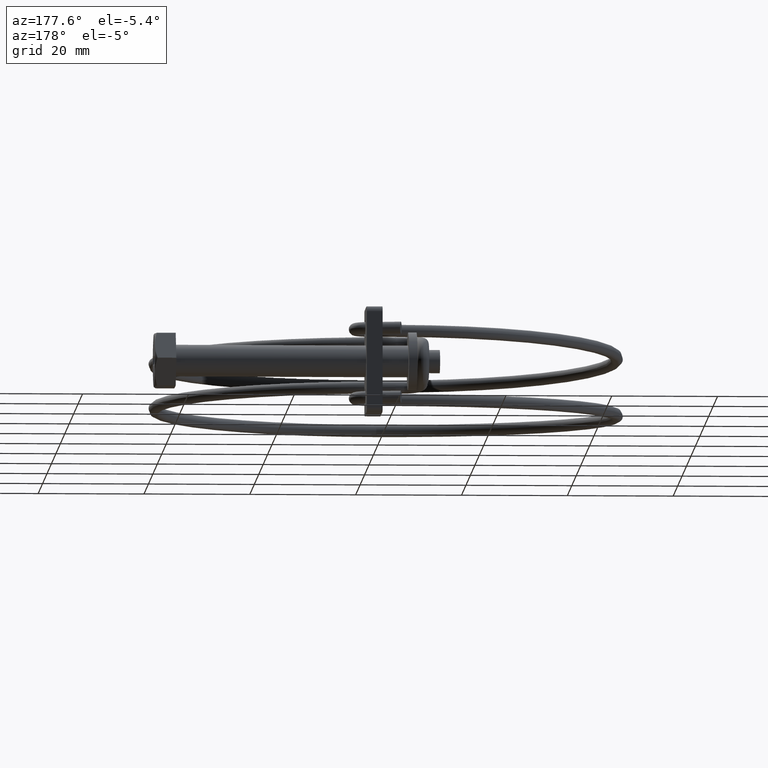
[diagram: clean part render]
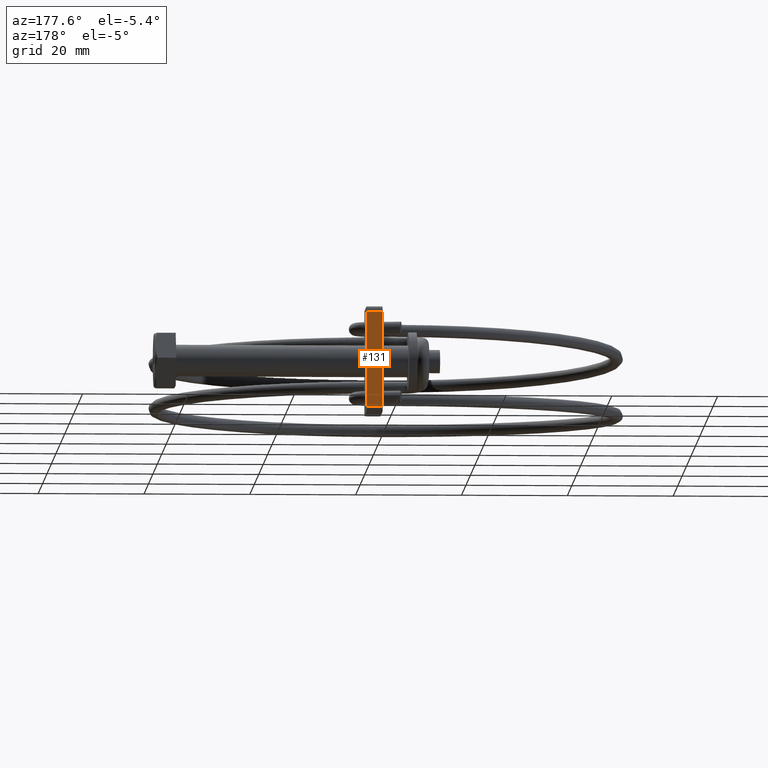
[diagram: same view with one face highlighted and labeled with its STEP entity id]
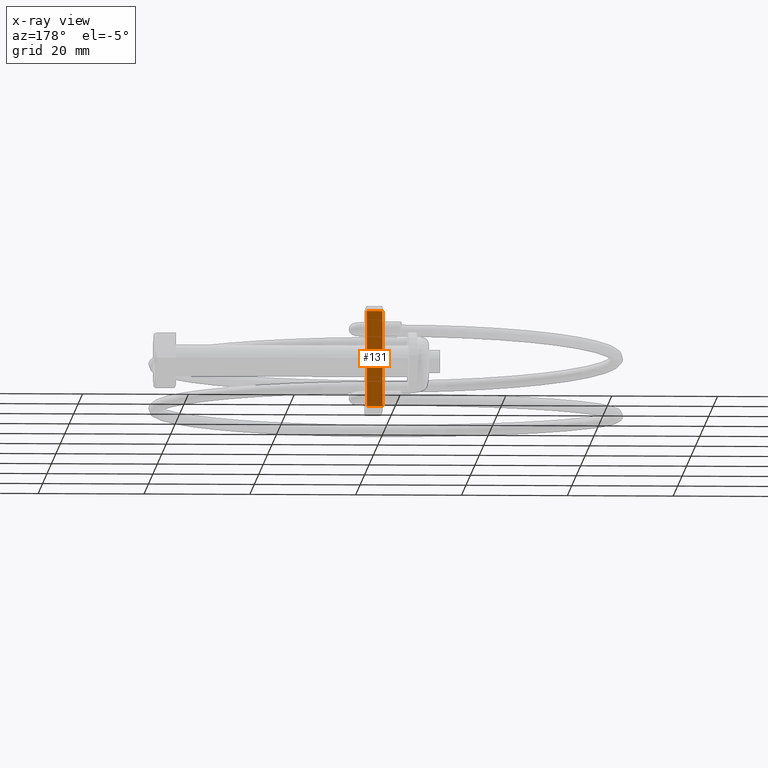
[diagram: x-ray of the same camera — body ghosted, the highlighted face saturated]
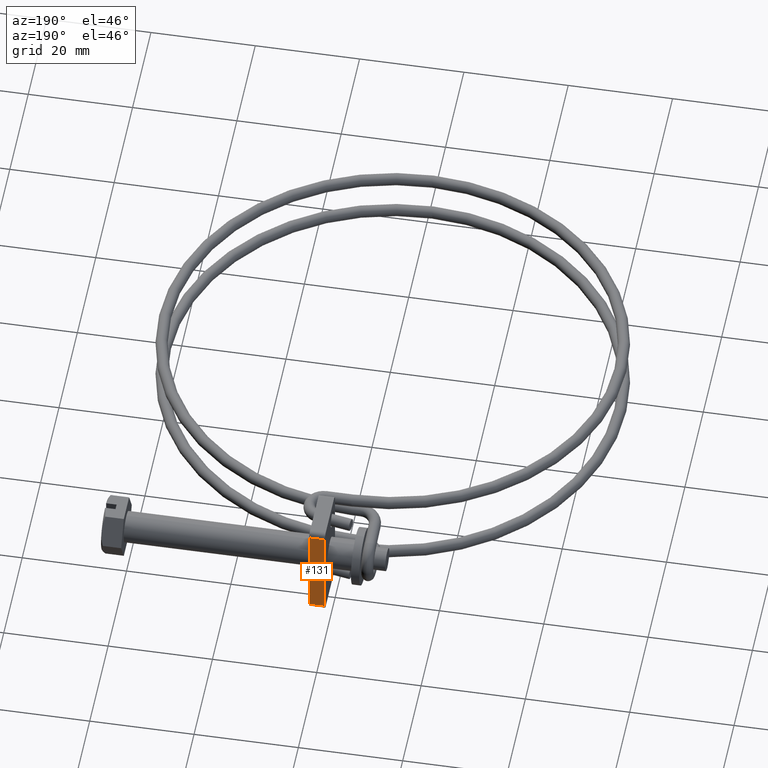
[diagram: same view with one face highlighted and labeled with its STEP entity id]
A machine part, auxiliary view. The second image highlights one B-rep face of the part: STEP entity #131.
The next image is the same camera in x-ray: the body ghosted, the highlighted face saturated — about 0% of this face is hidden behind the body in this view.
A second angle (auxiliary view) of the same face is appended — the face is thin or edge-on in the first view.
In plain terms, the highlighted planar face has unit normal (0, -1, 0).
Its self-contained STEP definition (entity closure, byte-faithful):
#17 = VECTOR ( 'NONE', #2396, 1000.000000000000000 ) ;
#101 = LINE ( 'NONE', #446, #17 ) ;
#131 = ADVANCED_FACE ( 'NONE', ( #1710 ), #330, .F. ) ;
#241 = ORIENTED_EDGE ( 'NONE', *, *, #2513, .F. ) ;
#257 = VERTEX_POINT ( 'NONE', #1900 ) ;
#289 = CARTESIAN_POINT ( 'NONE',  ( 1.500000000000000000, 5.500000000000000000, -9.000000000000003600 ) ) ;
#330 = PLANE ( 'NONE',  #1447 ) ;
#446 = CARTESIAN_POINT ( 'NONE',  ( 1.500000000000000000, 5.500000000000000000, 9.000000000000001800 ) ) ;
#645 = EDGE_CURVE ( 'NONE', #1800, #3150, #3001, .T. ) ;
#736 = CARTESIAN_POINT ( 'NONE',  ( -1.500000000000000000, 5.500000000000000000, 9.000000000000001800 ) ) ;
#738 = CARTESIAN_POINT ( 'NONE',  ( 1.500000000000000000, 5.500000000000000000, -9.000000000000003600 ) ) ;
#759 = EDGE_CURVE ( 'NONE', #1724, #257, #101, .T. ) ;
#774 = VECTOR ( 'NONE', #1321, 1000.000000000000000 ) ;
#865 = DIRECTION ( 'NONE',  ( 0.0000000000000000000, -1.000000000000000000, 0.0000000000000000000 ) ) ;
#1195 = ORIENTED_EDGE ( 'NONE', *, *, #645, .T. ) ;
#1213 = LINE ( 'NONE', #1865, #2441 ) ;
#1321 = DIRECTION ( 'NONE',  ( -0.0000000000000000000, -0.0000000000000000000, 1.000000000000000000 ) ) ;
#1336 = CARTESIAN_POINT ( 'NONE',  ( 1.500000000000000000, 5.500000000000000000, 10.00000000000000000 ) ) ;
#1447 = AXIS2_PLACEMENT_3D ( 'NONE', #1336, #865, #2592 ) ;
#1485 = DIRECTION ( 'NONE',  ( -1.000000000000000000, 0.0000000000000000000, 0.0000000000000000000 ) ) ;
#1578 = CARTESIAN_POINT ( 'NONE',  ( 1.500000000000000000, 5.500000000000000000, 10.00000000000000000 ) ) ;
#1710 = FACE_OUTER_BOUND ( 'NONE', #1869, .T. ) ;
#1724 = VERTEX_POINT ( 'NONE', #736 ) ;
#1800 = VERTEX_POINT ( 'NONE', #289 ) ;
#1865 = CARTESIAN_POINT ( 'NONE',  ( -1.500000000000000000, 5.500000000000000000, 10.00000000000000000 ) ) ;
#1869 = EDGE_LOOP ( 'NONE', ( #241, #1195, #2305, #3151 ) ) ;
#1900 = CARTESIAN_POINT ( 'NONE',  ( 1.500000000000000000, 5.500000000000000000, 9.000000000000001800 ) ) ;
#2094 = LINE ( 'NONE', #1578, #774 ) ;
#2263 = VECTOR ( 'NONE', #1485, 1000.000000000000000 ) ;
#2305 = ORIENTED_EDGE ( 'NONE', *, *, #2626, .T. ) ;
#2363 = DIRECTION ( 'NONE',  ( -0.0000000000000000000, -0.0000000000000000000, 1.000000000000000000 ) ) ;
#2396 = DIRECTION ( 'NONE',  ( 1.000000000000000000, -0.0000000000000000000, -0.0000000000000000000 ) ) ;
#2441 = VECTOR ( 'NONE', #2363, 1000.000000000000000 ) ;
#2513 = EDGE_CURVE ( 'NONE', #1800, #257, #2094, .T. ) ;
#2592 = DIRECTION ( 'NONE',  ( 0.0000000000000000000, -0.0000000000000000000, -1.000000000000000000 ) ) ;
#2626 = EDGE_CURVE ( 'NONE', #3150, #1724, #1213, .T. ) ;
#2763 = CARTESIAN_POINT ( 'NONE',  ( -1.500000000000000000, 5.500000000000000000, -9.000000000000003600 ) ) ;
#3001 = LINE ( 'NONE', #738, #2263 ) ;
#3150 = VERTEX_POINT ( 'NONE', #2763 ) ;
#3151 = ORIENTED_EDGE ( 'NONE', *, *, #759, .T. ) ;